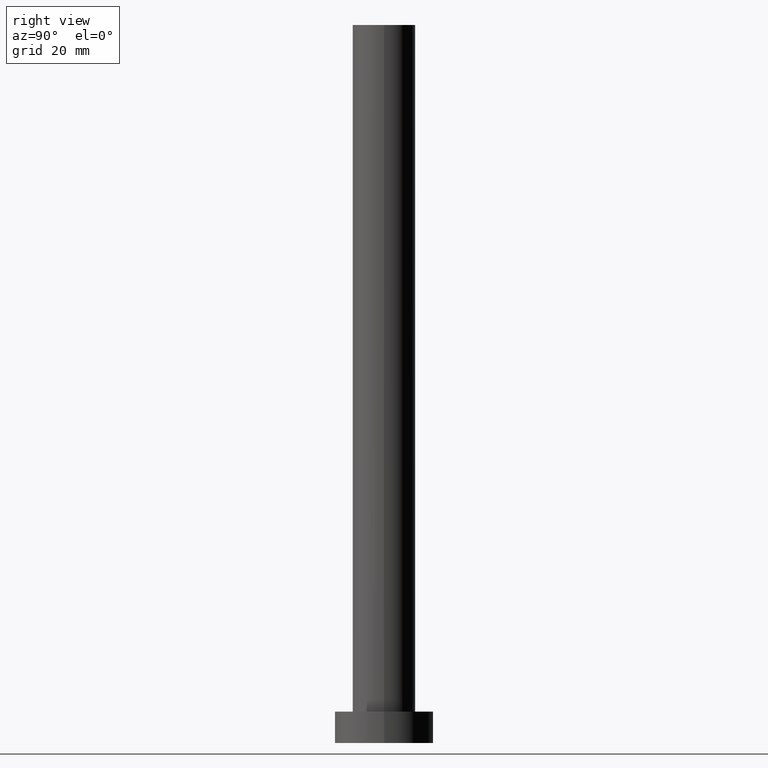
[diagram: clean part render]
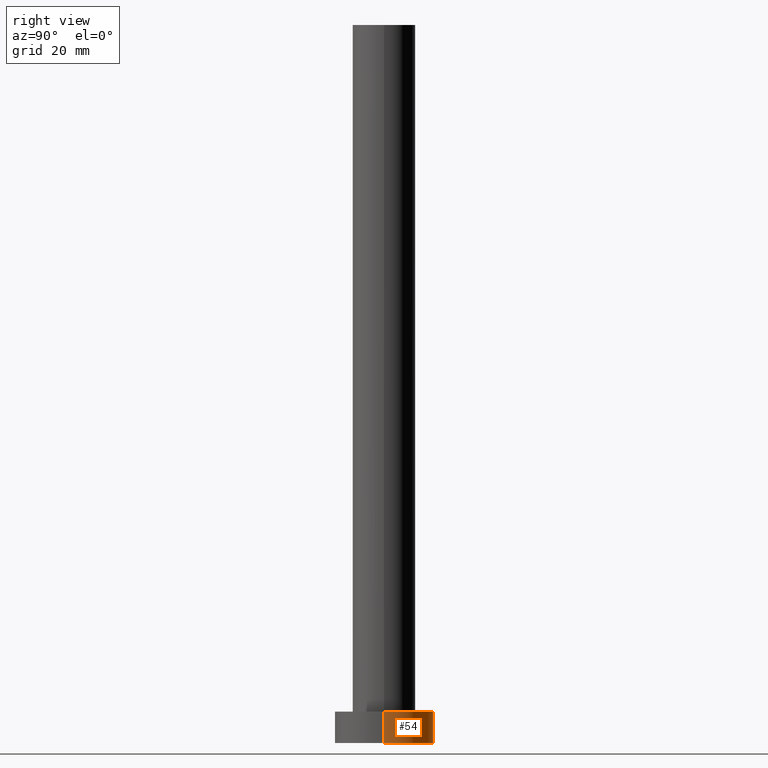
[diagram: same view with one face highlighted and labeled with its STEP entity id]
A machine part, right view. The second image highlights one B-rep face of the part: STEP entity #54.
In plain terms, the highlighted cylindrical surface (partial cylindrical patch) has radius 11 mm, axis along (-0, -0, -1).
Its self-contained STEP definition (entity closure, byte-faithful):
#4 = AXIS2_PLACEMENT_3D ( 'NONE', #6, #48, #118 ) ;
#6 = CARTESIAN_POINT ( 'NONE',  ( 0.000000000000000000, 0.000000000000000000, 7.000000000000000000 ) ) ;
#8 = CARTESIAN_POINT ( 'NONE',  ( 11.00000000000000000, 1.347111479062088405E-15, 7.000000000000000000 ) ) ;
#10 = CARTESIAN_POINT ( 'NONE',  ( 11.00000000000000000, 1.347111479062088405E-15, 0.000000000000000000 ) ) ;
#27 = CARTESIAN_POINT ( 'NONE',  ( -11.00000000000000000, 0.000000000000000000, 0.000000000000000000 ) ) ;
#48 = DIRECTION ( 'NONE',  ( -0.000000000000000000, -0.000000000000000000, -1.000000000000000000 ) ) ;
#54 = ADVANCED_FACE ( 'NONE', ( #224 ), #181, .T. ) ;
#63 = EDGE_CURVE ( 'NONE', #111, #84, #167, .T. ) ;
#74 = CARTESIAN_POINT ( 'NONE',  ( 0.000000000000000000, 0.000000000000000000, 7.000000000000000000 ) ) ;
#79 = DIRECTION ( 'NONE',  ( 1.000000000000000000, 0.000000000000000000, 0.000000000000000000 ) ) ;
#84 = VERTEX_POINT ( 'NONE', #27 ) ;
#87 = CARTESIAN_POINT ( 'NONE',  ( 0.000000000000000000, 0.000000000000000000, 0.000000000000000000 ) ) ;
#94 = VERTEX_POINT ( 'NONE', #10 ) ;
#96 = AXIS2_PLACEMENT_3D ( 'NONE', #87, #164, #135 ) ;
#101 = VECTOR ( 'NONE', #104, 1000.000000000000000 ) ;
#102 = VECTOR ( 'NONE', #113, 1000.000000000000000 ) ;
#104 = DIRECTION ( 'NONE',  ( -0.000000000000000000, -0.000000000000000000, -1.000000000000000000 ) ) ;
#110 = DIRECTION ( 'NONE',  ( 0.000000000000000000, 0.000000000000000000, 1.000000000000000000 ) ) ;
#111 = VERTEX_POINT ( 'NONE', #136 ) ;
#113 = DIRECTION ( 'NONE',  ( -0.000000000000000000, -0.000000000000000000, -1.000000000000000000 ) ) ;
#118 = DIRECTION ( 'NONE',  ( -1.000000000000000000, 0.000000000000000000, 0.000000000000000000 ) ) ;
#122 = EDGE_CURVE ( 'NONE', #94, #84, #142, .T. ) ;
#135 = DIRECTION ( 'NONE',  ( 1.000000000000000000, 0.000000000000000000, 0.000000000000000000 ) ) ;
#136 = CARTESIAN_POINT ( 'NONE',  ( -11.00000000000000000, 0.000000000000000000, 7.000000000000000000 ) ) ;
#142 = CIRCLE ( 'NONE', #96, 11.00000000000000000 ) ;
#153 = ORIENTED_EDGE ( 'NONE', *, *, #189, .T. ) ;
#161 = VERTEX_POINT ( 'NONE', #185 ) ;
#162 = AXIS2_PLACEMENT_3D ( 'NONE', #74, #110, #79 ) ;
#164 = DIRECTION ( 'NONE',  ( 0.000000000000000000, 0.000000000000000000, 1.000000000000000000 ) ) ;
#166 = CARTESIAN_POINT ( 'NONE',  ( -11.00000000000000000, 0.000000000000000000, 7.000000000000000000 ) ) ;
#167 = LINE ( 'NONE', #166, #101 ) ;
#178 = ORIENTED_EDGE ( 'NONE', *, *, #249, .F. ) ;
#181 = CYLINDRICAL_SURFACE ( 'NONE', #4, 11.00000000000000000 ) ;
#184 = LINE ( 'NONE', #8, #102 ) ;
#185 = CARTESIAN_POINT ( 'NONE',  ( 11.00000000000000000, 1.347111479062088405E-15, 7.000000000000000000 ) ) ;
#189 = EDGE_CURVE ( 'NONE', #161, #94, #184, .T. ) ;
#205 = CIRCLE ( 'NONE', #162, 11.00000000000000000 ) ;
#217 = EDGE_LOOP ( 'NONE', ( #178, #153, #240, #242 ) ) ;
#224 = FACE_OUTER_BOUND ( 'NONE', #217, .T. ) ;
#240 = ORIENTED_EDGE ( 'NONE', *, *, #122, .T. ) ;
#242 = ORIENTED_EDGE ( 'NONE', *, *, #63, .F. ) ;
#249 = EDGE_CURVE ( 'NONE', #161, #111, #205, .T. ) ;